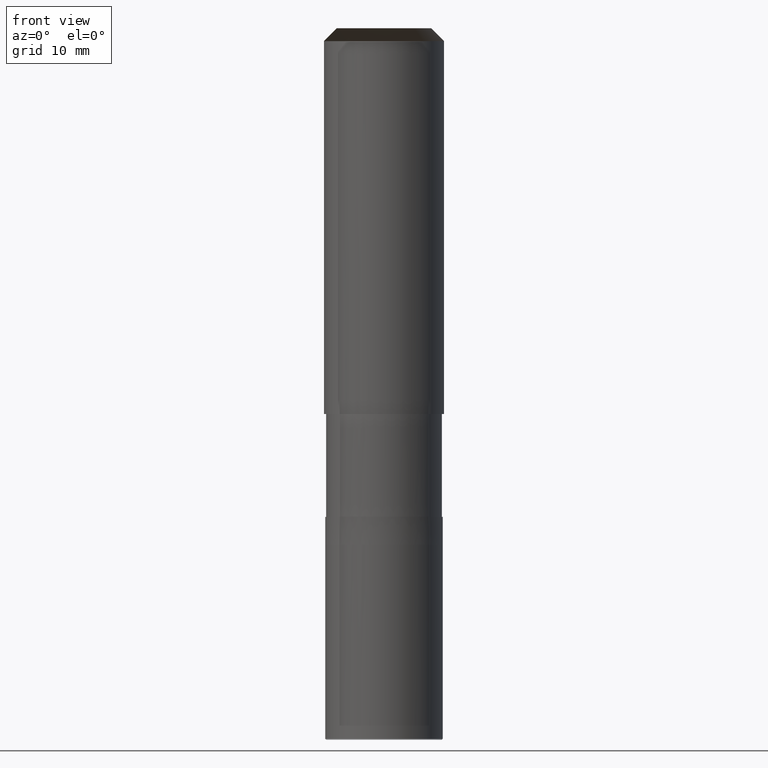
[diagram: clean part render]
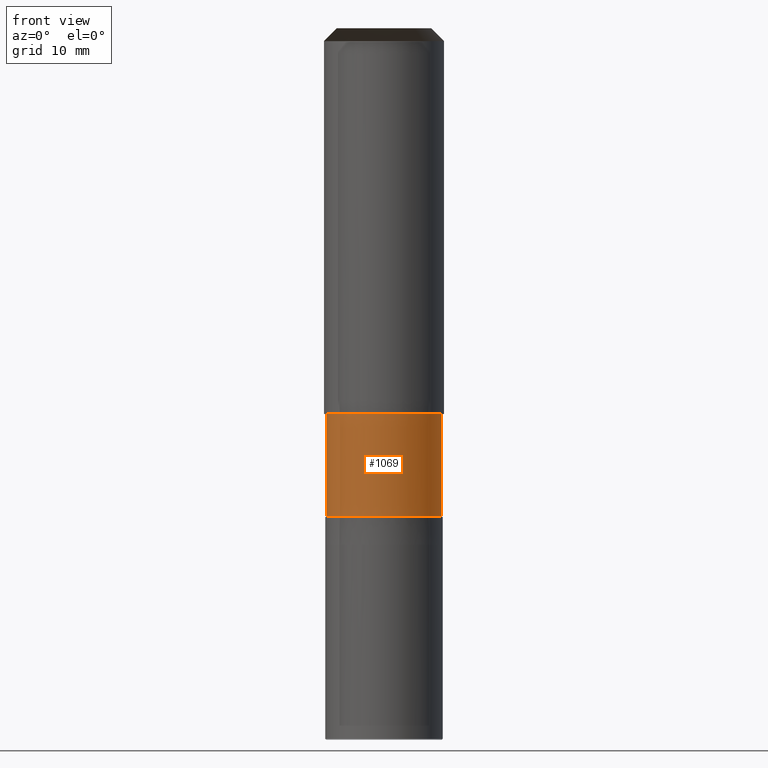
[diagram: same view with one face highlighted and labeled with its STEP entity id]
A machine part, front view. The second image highlights one B-rep face of the part: STEP entity #1069.
In plain terms, the highlighted face is a freeform B-spline surface patch.
Its self-contained STEP definition (entity closure, byte-faithful):
#645=CARTESIAN_POINT('',(6.75,0.0,-12.0));
#649=CARTESIAN_POINT('',(-6.75,0.0,-12.0));
#650=CARTESIAN_POINT('',(6.75,0.0,0.0));
#654=CARTESIAN_POINT('',(-6.75,0.0,0.0));
#674=CARTESIAN_POINT('',(-6.75,-6.75,-12.0));
#675=CARTESIAN_POINT('',(0.0,-6.75,-12.0));
#676=CARTESIAN_POINT('',(6.75,-6.75,-12.0));
#677=CARTESIAN_POINT('',(-6.75,-6.75,0.0));
#678=CARTESIAN_POINT('',(0.0,-6.75,0.0));
#679=CARTESIAN_POINT('',(6.75,-6.75,0.0));
#1050=(
BOUNDED_SURFACE()
B_SPLINE_SURFACE(1,2,(
(#649,#674,#675,#676,#645),
(#654,#677,#678,#679,#650)
), .UNSPECIFIED.,.F.,.F.,.F.)
B_SPLINE_SURFACE_WITH_KNOTS((2,2),(3,2,3),(
0.0,1.0),(
0.0,0.5,1.0), .UNSPECIFIED.)
GEOMETRIC_REPRESENTATION_ITEM()
RATIONAL_B_SPLINE_SURFACE(((1.0,0.707106781187,1.0,0.707106781187,1.0),
(1.0,0.707106781187,1.0,0.707106781187,1.0)
))
REPRESENTATION_ITEM('')
SURFACE()
);
#1051=(
BOUNDED_CURVE()
B_SPLINE_CURVE(2,(#645,#676,#675,#674,#649),.UNSPECIFIED.,.F.,.F.)
B_SPLINE_CURVE_WITH_KNOTS((3,2,3),
(0.0,0.5,1.0),.UNSPECIFIED.)
CURVE()
GEOMETRIC_REPRESENTATION_ITEM()
RATIONAL_B_SPLINE_CURVE((1.0,0.707106781187,1.0,0.707106781187,1.0))
REPRESENTATION_ITEM('')
);
#1052=(
BOUNDED_CURVE()
B_SPLINE_CURVE(1,(#649,#654),.UNSPECIFIED.,.F.,.F.)
B_SPLINE_CURVE_WITH_KNOTS((2,2),
(0.0,1.0),.UNSPECIFIED.)
CURVE()
GEOMETRIC_REPRESENTATION_ITEM()
RATIONAL_B_SPLINE_CURVE((1.0,1.0))
REPRESENTATION_ITEM('')
);
#1053=(
BOUNDED_CURVE()
B_SPLINE_CURVE(2,(#654,#677,#678,#679,#650),.UNSPECIFIED.,.F.,.F.)
B_SPLINE_CURVE_WITH_KNOTS((3,2,3),
(0.0,0.5,1.0),.UNSPECIFIED.)
CURVE()
GEOMETRIC_REPRESENTATION_ITEM()
RATIONAL_B_SPLINE_CURVE((1.0,0.707106781187,1.0,0.707106781187,1.0))
REPRESENTATION_ITEM('')
);
#1054=(
BOUNDED_CURVE()
B_SPLINE_CURVE(1,(#650,#645),.UNSPECIFIED.,.F.,.F.)
B_SPLINE_CURVE_WITH_KNOTS((2,2),
(0.0,1.0),.UNSPECIFIED.)
CURVE()
GEOMETRIC_REPRESENTATION_ITEM()
RATIONAL_B_SPLINE_CURVE((1.0,1.0))
REPRESENTATION_ITEM('')
);
#1055=VERTEX_POINT('',#645);
#1056=VERTEX_POINT('',#649);
#1057=VERTEX_POINT('',#650);
#1058=VERTEX_POINT('',#654);
#1059=EDGE_CURVE('',#1055,#1056,#1051,.T.);
#1060=EDGE_CURVE('',#1056,#1058,#1052,.T.);
#1061=EDGE_CURVE('',#1058,#1057,#1053,.T.);
#1062=EDGE_CURVE('',#1057,#1055,#1054,.T.);
#1063=ORIENTED_EDGE('',*,*,#1059,.T.);
#1064=ORIENTED_EDGE('',*,*,#1060,.T.);
#1065=ORIENTED_EDGE('',*,*,#1061,.T.);
#1066=ORIENTED_EDGE('',*,*,#1062,.T.);
#1067=EDGE_LOOP('',(#1063,#1064,#1065,#1066));
#1068=FACE_OUTER_BOUND('',#1067,.T.);
#1069=ADVANCED_FACE('',(#1068),#1050,.T.);